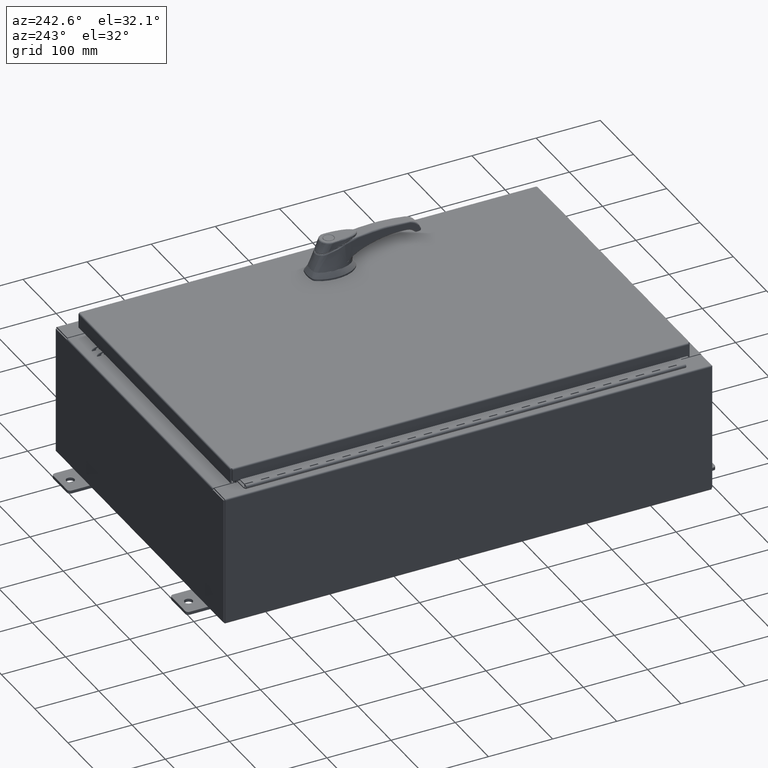
[diagram: clean part render]
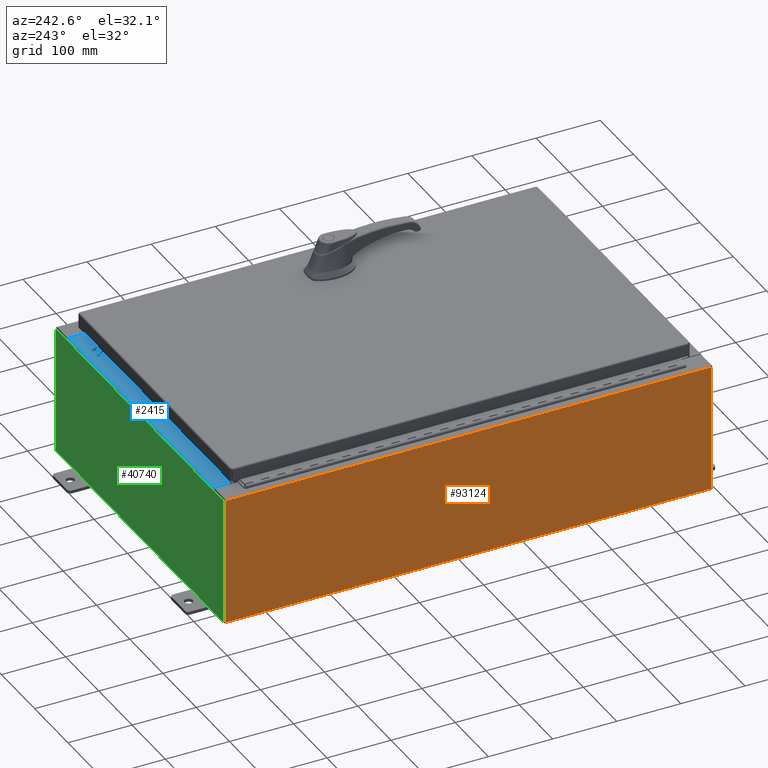
[diagram: same view with three faces highlighted in distinct colors, each labeled with its STEP entity id]
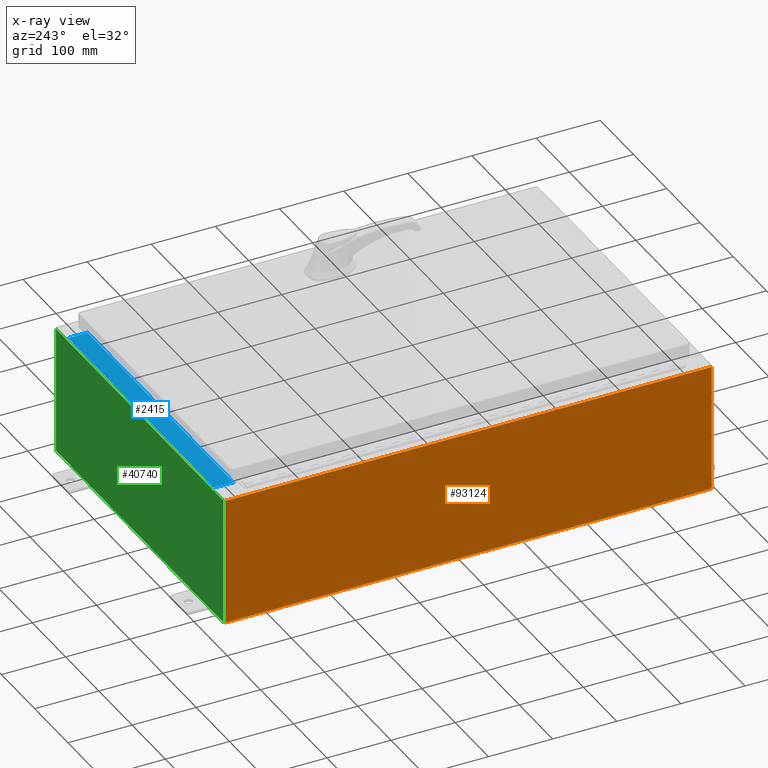
[diagram: x-ray of the same camera — body ghosted, the three highlighted faces saturated]
A machine part, auxiliary view with three faces highlighted in distinct colors.
The next image is the same camera in x-ray (body ghosted, the three faces saturated) — at least one of them is partly hidden behind the body in this view.
Their STEP definitions:

[orange] entity #93124 — the highlighted planar face has unit normal (1, 0, 0).
#6839 = LINE ( 'NONE', #97892, #28047 ) ;
#9781 = FACE_OUTER_BOUND ( 'NONE', #23323, .T. ) ;
#11100 = DIRECTION ( 'NONE',  ( 0.0000000000000000000, 1.000000000000000000, 0.0000000000000000000 ) ) ;
#12392 = DIRECTION ( 'NONE',  ( 3.584876173029202900E-015, 0.0000000000000000000, -1.000000000000000000 ) ) ;
#15926 = VECTOR ( 'NONE', #11100, 39.37007874015748100 ) ;
#20288 = VERTEX_POINT ( 'NONE', #98628 ) ;
#21056 = ORIENTED_EDGE ( 'NONE', *, *, #22412, .T. ) ;
#22412 = EDGE_CURVE ( 'NONE', #91196, #106698, #109870, .T. ) ;
#23323 = EDGE_LOOP ( 'NONE', ( #49778, #97971, #114412, #21056 ) ) ;
#24411 = PLANE ( 'NONE',  #51263 ) ;
#25807 = EDGE_CURVE ( 'NONE', #117311, #20288, #96056, .T. ) ;
#27050 = EDGE_CURVE ( 'NONE', #91196, #20288, #6839, .T. ) ;
#28047 = VECTOR ( 'NONE', #116128, 39.37007874015748100 ) ;
#40968 = DIRECTION ( 'NONE',  ( -3.584876173029202900E-015, 0.0000000000000000000, 1.000000000000000000 ) ) ;
#42540 = DIRECTION ( 'NONE',  ( 1.000000000000000000, 0.0000000000000000000, 3.584876173029202900E-015 ) ) ;
#47773 = CARTESIAN_POINT ( 'NONE',  ( -10.00000000000002800, -14.92529999999999600, 7.837599999999999200 ) ) ;
#49778 = ORIENTED_EDGE ( 'NONE', *, *, #89498, .T. ) ;
#51263 = AXIS2_PLACEMENT_3D ( 'NONE', #105412, #42540, #105819 ) ;
#52242 = CARTESIAN_POINT ( 'NONE',  ( -10.00000000000002800, -14.92529999999999600, 7.837599999999999200 ) ) ;
#57371 = CARTESIAN_POINT ( 'NONE',  ( -10.00000000000000000, 14.92530000000000500, -3.610957538630361200E-014 ) ) ;
#64555 = VECTOR ( 'NONE', #40968, 39.37007874015748100 ) ;
#66778 = LINE ( 'NONE', #47773, #15926 ) ;
#68751 = CARTESIAN_POINT ( 'NONE',  ( -10.00000000000000000, -14.92529999999999600, 0.01299999999999984700 ) ) ;
#72008 = VECTOR ( 'NONE', #12392, 39.37007874015748100 ) ;
#73671 = CARTESIAN_POINT ( 'NONE',  ( -10.00000000000002800, 14.92530000000000500, 7.837599999999999200 ) ) ;
#86812 = CARTESIAN_POINT ( 'NONE',  ( -10.00000000000000000, -14.92529999999999600, -3.610957538630361200E-014 ) ) ;
#89498 = EDGE_CURVE ( 'NONE', #106698, #117311, #66778, .T. ) ;
#91196 = VERTEX_POINT ( 'NONE', #68751 ) ;
#93124 = ADVANCED_FACE ( 'NONE', ( #9781 ), #24411, .F. ) ;
#96056 = LINE ( 'NONE', #57371, #72008 ) ;
#97892 = CARTESIAN_POINT ( 'NONE',  ( -10.00000000000000000, 14.92530000000000500, 0.01299999999999984700 ) ) ;
#97971 = ORIENTED_EDGE ( 'NONE', *, *, #25807, .T. ) ;
#98628 = CARTESIAN_POINT ( 'NONE',  ( -10.00000000000000000, 14.92530000000000500, 0.01299999999999983600 ) ) ;
#105412 = CARTESIAN_POINT ( 'NONE',  ( -10.00000000000000000, 0.0000000000000000000, -3.610957538630361200E-014 ) ) ;
#105819 = DIRECTION ( 'NONE',  ( 3.584876173029202900E-015, 0.0000000000000000000, -1.000000000000000000 ) ) ;
#106698 = VERTEX_POINT ( 'NONE', #52242 ) ;
#109870 = LINE ( 'NONE', #86812, #64555 ) ;
#114412 = ORIENTED_EDGE ( 'NONE', *, *, #27050, .F. ) ;
#116128 = DIRECTION ( 'NONE',  ( -0.0000000000000000000, 1.000000000000000000, -0.0000000000000000000 ) ) ;
#117311 = VERTEX_POINT ( 'NONE', #73671 ) ;

[blue] entity #2415 — the highlighted planar face has unit normal (0, 0, 1).
#1025 = CARTESIAN_POINT ( 'NONE',  ( -8.637200000000000000, -0.07469999999999973900, 4.000000000000000000 ) ) ;
#1570 = LINE ( 'NONE', #43433, #92068 ) ;
#2415 = ADVANCED_FACE ( 'NONE', ( #76513 ), #27859, .T. ) ;
#4840 = EDGE_LOOP ( 'NONE', ( #58988, #54799, #23343, #70781 ) ) ;
#6230 = VERTEX_POINT ( 'NONE', #85699 ) ;
#10544 = DIRECTION ( 'NONE',  ( -0.0000000000000000000, 1.000000000000000000, -3.566381192773190000E-015 ) ) ;
#10586 = EDGE_CURVE ( 'NONE', #111306, #99415, #68693, .T. ) ;
#17232 = VERTEX_POINT ( 'NONE', #97574 ) ;
#18032 = VECTOR ( 'NONE', #56059, 39.37007874015748100 ) ;
#20662 = VECTOR ( 'NONE', #10544, 39.37007874015748100 ) ;
#21054 = LINE ( 'NONE', #43327, #93125 ) ;
#23343 = ORIENTED_EDGE ( 'NONE', *, *, #45105, .F. ) ;
#27859 = PLANE ( 'NONE',  #30476 ) ;
#30476 = AXIS2_PLACEMENT_3D ( 'NONE', #36929, #100180, #45978 ) ;
#36929 = CARTESIAN_POINT ( 'NONE',  ( 0.0000000000000000000, 1.425992975200418500E-014, 4.000000000000000000 ) ) ;
#43327 = CARTESIAN_POINT ( 'NONE',  ( 8.637200000000000000, -1.300299999999999800, 4.000000000000004400 ) ) ;
#43433 = CARTESIAN_POINT ( 'NONE',  ( 8.637200000000000000, -1.287299999999999900, 4.000000000000003600 ) ) ;
#45105 = EDGE_CURVE ( 'NONE', #17232, #6230, #21054, .T. ) ;
#45978 = DIRECTION ( 'NONE',  ( 0.0000000000000000000, -1.000000000000000000, 3.566381192773190000E-015 ) ) ;
#47000 = CARTESIAN_POINT ( 'NONE',  ( -2.773851121247567100E-018, -0.08770000000000000000, 4.000000000000000900 ) ) ;
#54799 = ORIENTED_EDGE ( 'NONE', *, *, #55184, .F. ) ;
#55184 = EDGE_CURVE ( 'NONE', #6230, #111306, #1570, .T. ) ;
#56059 = DIRECTION ( 'NONE',  ( -1.000000000000000000, 3.162886113166609200E-017, -1.128005754888089100E-031 ) ) ;
#58988 = ORIENTED_EDGE ( 'NONE', *, *, #10586, .F. ) ;
#66074 = LINE ( 'NONE', #47000, #18032 ) ;
#66409 = CARTESIAN_POINT ( 'NONE',  ( -8.637200000000000000, -0.08770000000000000000, 4.000000000000000000 ) ) ;
#68693 = LINE ( 'NONE', #1025, #20662 ) ;
#70781 = ORIENTED_EDGE ( 'NONE', *, *, #79633, .T. ) ;
#74685 = CARTESIAN_POINT ( 'NONE',  ( -8.637200000000000000, -1.287299999999999200, 4.000000000000004400 ) ) ;
#76513 = FACE_OUTER_BOUND ( 'NONE', #4840, .T. ) ;
#79633 = EDGE_CURVE ( 'NONE', #17232, #99415, #66074, .T. ) ;
#84860 = DIRECTION ( 'NONE',  ( -0.0000000000000000000, -1.000000000000000000, 3.566381192773190000E-015 ) ) ;
#85699 = CARTESIAN_POINT ( 'NONE',  ( 8.637200000000000000, -1.287299999999999900, 4.000000000000004400 ) ) ;
#92068 = VECTOR ( 'NONE', #115444, 39.37007874015748100 ) ;
#93125 = VECTOR ( 'NONE', #84860, 39.37007874015748100 ) ;
#97574 = CARTESIAN_POINT ( 'NONE',  ( 8.637200000000000000, -0.08769999999999965300, 4.000000000000000000 ) ) ;
#99415 = VERTEX_POINT ( 'NONE', #66409 ) ;
#100180 = DIRECTION ( 'NONE',  ( 0.0000000000000000000, 3.566381192773190000E-015, 1.000000000000000000 ) ) ;
#111306 = VERTEX_POINT ( 'NONE', #74685 ) ;
#115444 = DIRECTION ( 'NONE',  ( -1.000000000000000000, 0.0000000000000000000, 0.0000000000000000000 ) ) ;

[green] entity #40740 — the highlighted planar face has unit normal (0, -1, 0).
#101 = VECTOR ( 'NONE', #79772, 39.37007874015748100 ) ;
#441 = EDGE_CURVE ( 'NONE', #67650, #116632, #3249, .T. ) ;
#1814 = VECTOR ( 'NONE', #72103, 39.37007874015748100 ) ;
#2008 = CARTESIAN_POINT ( 'NONE',  ( -8.674549999999996400, 0.0000000000000000000, 3.925299999999999600 ) ) ;
#2077 = CARTESIAN_POINT ( 'NONE',  ( 8.637200000000000000, 0.0000000000000000000, 3.912299999999999700 ) ) ;
#3249 = LINE ( 'NONE', #27875, #27325 ) ;
#3411 = VERTEX_POINT ( 'NONE', #78065 ) ;
#4141 = EDGE_CURVE ( 'NONE', #67359, #3411, #100364, .T. ) ;
#4865 = EDGE_CURVE ( 'NONE', #116632, #66488, #81833, .T. ) ;
#5321 = LINE ( 'NONE', #113890, #98650 ) ;
#5371 = LINE ( 'NONE', #65059, #23764 ) ;
#5410 = CARTESIAN_POINT ( 'NONE',  ( 8.674550000000001800, 0.0000000000000000000, 3.925299999999999600 ) ) ;
#5598 = DIRECTION ( 'NONE',  ( -0.0000000000000000000, 1.000000000000000000, -0.0000000000000000000 ) ) ;
#6086 = VERTEX_POINT ( 'NONE', #12700 ) ;
#8888 = CARTESIAN_POINT ( 'NONE',  ( 8.674549999999747700, -0.0000000000000000000, -5.647877341832665300E-013 ) ) ;
#10752 = ORIENTED_EDGE ( 'NONE', *, *, #64758, .F. ) ;
#10938 = DIRECTION ( 'NONE',  ( 1.000000000000000000, 0.0000000000000000000, 0.0000000000000000000 ) ) ;
#11752 = EDGE_CURVE ( 'NONE', #3411, #78864, #82877, .T. ) ;
#12700 = CARTESIAN_POINT ( 'NONE',  ( -8.674549999999996400, 0.0000000000000000000, 3.874949999999999700 ) ) ;
#14390 = ORIENTED_EDGE ( 'NONE', *, *, #88854, .F. ) ;
#17286 = EDGE_CURVE ( 'NONE', #89244, #67650, #96286, .T. ) ;
#18295 = DIRECTION ( 'NONE',  ( 1.000000000000000000, 0.0000000000000000000, 0.0000000000000000000 ) ) ;
#18507 = VERTEX_POINT ( 'NONE', #69253 ) ;
#21008 = ORIENTED_EDGE ( 'NONE', *, *, #441, .T. ) ;
#23293 = ORIENTED_EDGE ( 'NONE', *, *, #110301, .T. ) ;
#23764 = VECTOR ( 'NONE', #10938, 39.37007874015748100 ) ;
#24873 = EDGE_LOOP ( 'NONE', ( #10752, #36129, #67496, #70684, #111767, #54301, #14390, #52067, #23293, #112024, #21008, #106372 ) ) ;
#26249 = PLANE ( 'NONE',  #93535 ) ;
#26412 = CARTESIAN_POINT ( 'NONE',  ( 9.925300000000000000, 0.0000000000000000000, 3.925299999999999600 ) ) ;
#27325 = VECTOR ( 'NONE', #33451, 39.37007874015748100 ) ;
#27531 = AXIS2_PLACEMENT_3D ( 'NONE', #41594, #104853, #50638 ) ;
#27875 = CARTESIAN_POINT ( 'NONE',  ( -9.925300000000000000, 0.0000000000000000000, 3.925299999999999600 ) ) ;
#29317 = CARTESIAN_POINT ( 'NONE',  ( -8.637199999999996400, -0.0000000000000000000, 0.0000000000000000000 ) ) ;
#30006 = VERTEX_POINT ( 'NONE', #5410 ) ;
#33451 = DIRECTION ( 'NONE',  ( -0.0000000000000000000, -0.0000000000000000000, 1.000000000000000000 ) ) ;
#33781 = VECTOR ( 'NONE', #18295, 39.37007874015748100 ) ;
#35317 = DIRECTION ( 'NONE',  ( 0.0000000000000000000, -0.0000000000000000000, -1.000000000000000000 ) ) ;
#35487 = DIRECTION ( 'NONE',  ( 0.0000000000000000000, 0.0000000000000000000, -1.000000000000000000 ) ) ;
#35494 = EDGE_CURVE ( 'NONE', #46110, #6086, #83001, .T. ) ;
#36129 = ORIENTED_EDGE ( 'NONE', *, *, #35494, .F. ) ;
#40740 = ADVANCED_FACE ( 'NONE', ( #85166 ), #26249, .F. ) ;
#41594 = CARTESIAN_POINT ( 'NONE',  ( 8.655875000000000000, 0.0000000000000000000, 3.874949999999999700 ) ) ;
#45872 = EDGE_CURVE ( 'NONE', #30006, #89620, #5371, .T. ) ;
#46110 = VERTEX_POINT ( 'NONE', #102989 ) ;
#50219 = VECTOR ( 'NONE', #35487, 39.37007874015748100 ) ;
#50638 = DIRECTION ( 'NONE',  ( 0.0000000000000000000, 0.0000000000000000000, -1.000000000000000000 ) ) ;
#51350 = DIRECTION ( 'NONE',  ( 1.000000000000000000, 0.0000000000000000000, 0.0000000000000000000 ) ) ;
#52067 = ORIENTED_EDGE ( 'NONE', *, *, #45872, .T. ) ;
#52675 = LINE ( 'NONE', #8888, #1814 ) ;
#53043 = LINE ( 'NONE', #26412, #50219 ) ;
#53258 = CARTESIAN_POINT ( 'NONE',  ( -9.925300000000000000, 0.0000000000000000000, -3.925299999999999600 ) ) ;
#54301 = ORIENTED_EDGE ( 'NONE', *, *, #4141, .F. ) ;
#56486 = CARTESIAN_POINT ( 'NONE',  ( 8.637200000000000000, 0.0000000000000000000, 0.0000000000000000000 ) ) ;
#56521 = DIRECTION ( 'NONE',  ( 0.0000000000000000000, 0.0000000000000000000, -1.000000000000000000 ) ) ;
#59698 = CARTESIAN_POINT ( 'NONE',  ( -8.655874999999996400, 0.0000000000000000000, 3.874949999999999700 ) ) ;
#63761 = AXIS2_PLACEMENT_3D ( 'NONE', #59698, #5598, #68799 ) ;
#64289 = VECTOR ( 'NONE', #56521, 39.37007874015748100 ) ;
#64474 = CARTESIAN_POINT ( 'NONE',  ( -9.925300000000000000, 0.0000000000000000000, 3.925299999999999600 ) ) ;
#64758 = EDGE_CURVE ( 'NONE', #6086, #66488, #5321, .T. ) ;
#65059 = CARTESIAN_POINT ( 'NONE',  ( -9.925300000000000000, 0.0000000000000000000, 3.925299999999999600 ) ) ;
#66488 = VERTEX_POINT ( 'NONE', #2008 ) ;
#67359 = VERTEX_POINT ( 'NONE', #101265 ) ;
#67496 = ORIENTED_EDGE ( 'NONE', *, *, #67954, .F. ) ;
#67650 = VERTEX_POINT ( 'NONE', #53258 ) ;
#67954 = EDGE_CURVE ( 'NONE', #18507, #46110, #88301, .T. ) ;
#68799 = DIRECTION ( 'NONE',  ( 0.0000000000000000000, 0.0000000000000000000, -1.000000000000000000 ) ) ;
#69253 = CARTESIAN_POINT ( 'NONE',  ( -8.637199999999996400, 1.024442997624098700E-016, 3.912299999999999700 ) ) ;
#70684 = ORIENTED_EDGE ( 'NONE', *, *, #107328, .T. ) ;
#71274 = CARTESIAN_POINT ( 'NONE',  ( 0.0000000000000000000, 0.0000000000000000000, 0.0000000000000000000 ) ) ;
#72103 = DIRECTION ( 'NONE',  ( -6.510859170600007400E-014, 0.0000000000000000000, -1.000000000000000000 ) ) ;
#78065 = CARTESIAN_POINT ( 'NONE',  ( 8.637200000000000000, 0.0000000000000000000, 3.874949999999999700 ) ) ;
#78864 = VERTEX_POINT ( 'NONE', #2077 ) ;
#79772 = DIRECTION ( 'NONE',  ( -1.000000000000000000, -0.0000000000000000000, -0.0000000000000000000 ) ) ;
#81833 = LINE ( 'NONE', #64474, #33781 ) ;
#82877 = LINE ( 'NONE', #56486, #88546 ) ;
#83001 = CIRCLE ( 'NONE', #63761, 0.01867500000000003900 ) ;
#83766 = DIRECTION ( 'NONE',  ( 0.0000000000000000000, 0.0000000000000000000, 1.000000000000000000 ) ) ;
#85166 = FACE_OUTER_BOUND ( 'NONE', #24873, .T. ) ;
#88301 = LINE ( 'NONE', #29317, #64289 ) ;
#88546 = VECTOR ( 'NONE', #83766, 39.37007874015748100 ) ;
#88854 = EDGE_CURVE ( 'NONE', #30006, #67359, #52675, .T. ) ;
#89244 = VERTEX_POINT ( 'NONE', #97667 ) ;
#89620 = VERTEX_POINT ( 'NONE', #114256 ) ;
#93535 = AXIS2_PLACEMENT_3D ( 'NONE', #71274, #97766, #35317 ) ;
#95641 = DIRECTION ( 'NONE',  ( 0.0000000000000000000, 0.0000000000000000000, 1.000000000000000000 ) ) ;
#96286 = LINE ( 'NONE', #97975, #101 ) ;
#97667 = CARTESIAN_POINT ( 'NONE',  ( 9.925300000000000000, 0.0000000000000000000, -3.925299999999999600 ) ) ;
#97766 = DIRECTION ( 'NONE',  ( 0.0000000000000000000, -1.000000000000000000, 0.0000000000000000000 ) ) ;
#97975 = CARTESIAN_POINT ( 'NONE',  ( -9.925300000000000000, 0.0000000000000000000, -3.925299999999999600 ) ) ;
#98650 = VECTOR ( 'NONE', #95641, 39.37007874015748100 ) ;
#100364 = CIRCLE ( 'NONE', #27531, 0.01867500000000003900 ) ;
#101265 = CARTESIAN_POINT ( 'NONE',  ( 8.674550000000000000, 0.0000000000000000000, 3.874949999999999700 ) ) ;
#102989 = CARTESIAN_POINT ( 'NONE',  ( -8.637199999999996400, -0.0000000000000000000, 3.874949999999999700 ) ) ;
#104853 = DIRECTION ( 'NONE',  ( -0.0000000000000000000, 1.000000000000000000, -0.0000000000000000000 ) ) ;
#106372 = ORIENTED_EDGE ( 'NONE', *, *, #4865, .T. ) ;
#107328 = EDGE_CURVE ( 'NONE', #18507, #78864, #113661, .T. ) ;
#107999 = VECTOR ( 'NONE', #51350, 39.37007874015748100 ) ;
#110301 = EDGE_CURVE ( 'NONE', #89620, #89244, #53043, .T. ) ;
#111767 = ORIENTED_EDGE ( 'NONE', *, *, #11752, .F. ) ;
#112024 = ORIENTED_EDGE ( 'NONE', *, *, #17286, .T. ) ;
#113661 = LINE ( 'NONE', #114705, #107999 ) ;
#113890 = CARTESIAN_POINT ( 'NONE',  ( -8.674549999999996400, -0.0000000000000000000, 0.0000000000000000000 ) ) ;
#114256 = CARTESIAN_POINT ( 'NONE',  ( 9.925300000000000000, 0.0000000000000000000, 3.925299999999999600 ) ) ;
#114705 = CARTESIAN_POINT ( 'NONE',  ( -8.637200000000000000, 1.024442997624098700E-016, 3.912299999999999700 ) ) ;
#115013 = CARTESIAN_POINT ( 'NONE',  ( -9.925300000000000000, 0.0000000000000000000, 3.925299999999999600 ) ) ;
#116632 = VERTEX_POINT ( 'NONE', #115013 ) ;